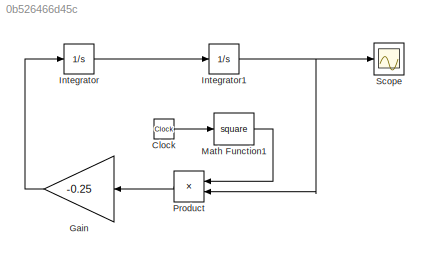
MODEL slx_0b526466d45c
KIND model
CONFIG AbsTol = auto
CONFIG EnableMultiTasking = off
CONFIG FixedStep = auto
CONFIG MaxStep = auto
CONFIG MinStep = auto
CONFIG RelTol = 1e-3
CONFIG SampleTimeConstraint = Unconstrained
CONFIG SolverName = VariableStepAuto
CONFIG StartTime = 0.0
CONFIG StopTime = 5
BLOCK [Clock] Clock
BLOCK [Gain] Gain
  Gain = -0.25
BLOCK [Integrator] Integrator
  InitialCondition = -1
BLOCK [Integrator] Integrator1
  InitialCondition = 1
BLOCK [Math] Math Function1
  Operator = square
BLOCK [Product] Product
BLOCK [Scope] Scope
  Floating = off
  NumInputPorts = 1
  ScopeSpecificationString = Simulink.scopes.TimeScopeBlockCfg('CurrentConfiguration', extmgr.ConfigurationSet(extmgr.Configuration('Core','General UI',true),extmgr.Configuration('Core','Source UI',true),extmgr.Configuration('Sources','WiredSimulink',true),extmgr.Configuration('Visuals','Time Domain',true,'SerializedDisplays',{struct('MinYLimReal','-1.38144','MaxYLimReal','1.2646','YLabelReal','','MinYLimMag','0.00000','MaxYL...<+1486ch>
LINE Clock:1 -> Math Function1:1
LINE Gain:1 -> Integrator:1
NET Integrator1:1 -> Product:2, Scope:1
LINE Integrator:1 -> Integrator1:1
LINE Math Function1:1 -> Product:1
LINE Product:1 -> Gain:1
note: NET lines group one-source signal fan-out (src -> all destinations, sorted); 1:1 wires keep LINE
